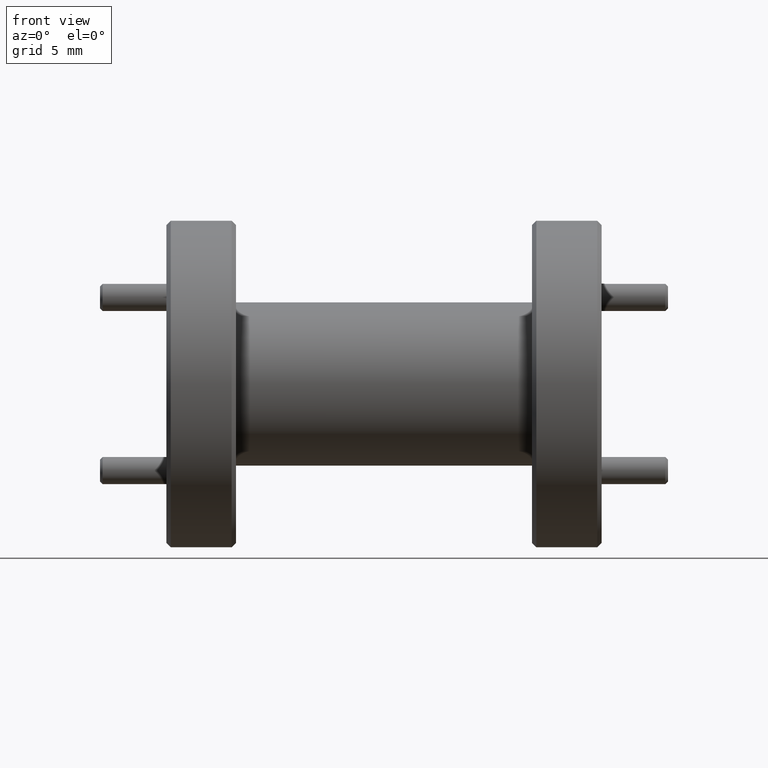
[diagram: clean part render]
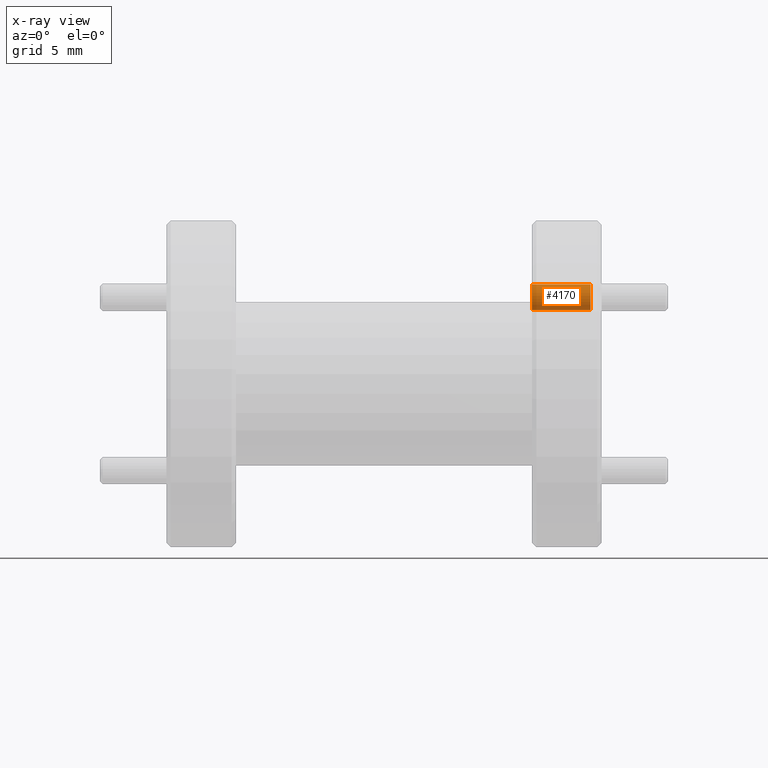
[diagram: x-ray — body ghosted, one internal face saturated and labeled with its STEP entity id]
A machine part, front view, then the same camera in x-ray: the body is ghosted and one INTERNAL B-rep face — a face not visible from any outside direction — is saturated and labeled: STEP entity #4170.
In plain terms, the highlighted cylindrical surface (edge-blend (fillet) strip) has radius 0.7557 mm, axis along (1, 0, 0).
Its self-contained STEP definition (entity closure, byte-faithful):
#94 = LINE ( 'NONE', #3963, #3834 ) ;
#212 = VERTEX_POINT ( 'NONE', #4116 ) ;
#439 = DIRECTION ( 'NONE',  ( 0.0000000000000000000, 0.0000000000000000000, -1.000000000000000000 ) ) ;
#488 = ORIENTED_EDGE ( 'NONE', *, *, #3000, .T. ) ;
#521 = ORIENTED_EDGE ( 'NONE', *, *, #598, .F. ) ;
#547 = ORIENTED_EDGE ( 'NONE', *, *, #2115, .T. ) ;
#568 = AXIS2_PLACEMENT_3D ( 'NONE', #3611, #2998, #959 ) ;
#590 = CARTESIAN_POINT ( 'NONE',  ( -2.214678697788351700, 0.9855597184799670400, 1.116106190143525400 ) ) ;
#598 = EDGE_CURVE ( 'NONE', #3437, #2327, #2282, .T. ) ;
#959 = DIRECTION ( 'NONE',  ( 0.0000000000000000000, 0.0000000000000000000, -1.000000000000000000 ) ) ;
#963 = EDGE_LOOP ( 'NONE', ( #547, #488, #521, #4017 ) ) ;
#1116 = CARTESIAN_POINT ( 'NONE',  ( -2.354678697788351800, 0.9855597184799670400, 1.116106190143525400 ) ) ;
#1472 = DIRECTION ( 'NONE',  ( 1.000000000000000000, 0.0000000000000000000, 0.0000000000000000000 ) ) ;
#1887 = CARTESIAN_POINT ( 'NONE',  ( -2.219928697788351900, 0.9855597184799670400, 1.116106190143525400 ) ) ;
#2086 = DIRECTION ( 'NONE',  ( 0.0000000000000000000, 0.0000000000000000000, -1.000000000000000000 ) ) ;
#2115 = EDGE_CURVE ( 'NONE', #212, #3199, #3701, .T. ) ;
#2218 = AXIS2_PLACEMENT_3D ( 'NONE', #3409, #1472, #439 ) ;
#2227 = VECTOR ( 'NONE', #4313, 39.37007874015748100 ) ;
#2282 = CIRCLE ( 'NONE', #568, 0.02975000000000000200 ) ;
#2296 = DIRECTION ( 'NONE',  ( 1.000000000000000000, 0.0000000000000000000, 0.0000000000000000000 ) ) ;
#2327 = VERTEX_POINT ( 'NONE', #1887 ) ;
#2462 = CARTESIAN_POINT ( 'NONE',  ( -2.219928697788351900, 0.9855597184799670400, 1.056606190143525500 ) ) ;
#2998 = DIRECTION ( 'NONE',  ( -1.000000000000000000, -0.0000000000000000000, -0.0000000000000000000 ) ) ;
#3000 = EDGE_CURVE ( 'NONE', #3199, #2327, #4205, .T. ) ;
#3199 = VERTEX_POINT ( 'NONE', #1116 ) ;
#3376 = CARTESIAN_POINT ( 'NONE',  ( -2.354678697788351800, 0.9855597184799670400, 1.086356190143525500 ) ) ;
#3409 = CARTESIAN_POINT ( 'NONE',  ( -2.214678697788351700, 0.9855597184799670400, 1.086356190143525500 ) ) ;
#3437 = VERTEX_POINT ( 'NONE', #2462 ) ;
#3576 = FACE_OUTER_BOUND ( 'NONE', #963, .T. ) ;
#3611 = CARTESIAN_POINT ( 'NONE',  ( -2.219928697788351900, 0.9855597184799670400, 1.086356190143525500 ) ) ;
#3692 = EDGE_CURVE ( 'NONE', #212, #3437, #94, .T. ) ;
#3701 = CIRCLE ( 'NONE', #3788, 0.02975000000000000200 ) ;
#3788 = AXIS2_PLACEMENT_3D ( 'NONE', #3376, #4064, #2086 ) ;
#3834 = VECTOR ( 'NONE', #2296, 39.37007874015748100 ) ;
#3963 = CARTESIAN_POINT ( 'NONE',  ( -2.214678697788351700, 0.9855597184799670400, 1.056606190143525500 ) ) ;
#4017 = ORIENTED_EDGE ( 'NONE', *, *, #3692, .F. ) ;
#4064 = DIRECTION ( 'NONE',  ( -1.000000000000000000, -0.0000000000000000000, -0.0000000000000000000 ) ) ;
#4116 = CARTESIAN_POINT ( 'NONE',  ( -2.354678697788351800, 0.9855597184799670400, 1.056606190143525500 ) ) ;
#4170 = ADVANCED_FACE ( 'NONE', ( #3576 ), #4269, .F. ) ;
#4205 = LINE ( 'NONE', #590, #2227 ) ;
#4269 = CYLINDRICAL_SURFACE ( 'NONE', #2218, 0.02975000000000000200 ) ;
#4313 = DIRECTION ( 'NONE',  ( 1.000000000000000000, 0.0000000000000000000, 0.0000000000000000000 ) ) ;